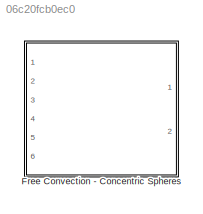
MODEL slx_06c20fcb0ec0
KIND library
CONFIG AbsTol = auto
CONFIG FixedStep = auto
CONFIG MaxStep = auto
CONFIG MinStep = auto
CONFIG RelTol = 1e-3
CONFIG SampleTimeConstraint = Unconstrained
CONFIG Solver = ode45
CONFIG SolverMode = Auto
CONFIG SolverName = ode45
CONFIG StartTime = 0.0
CONFIG StopTime = 10.0
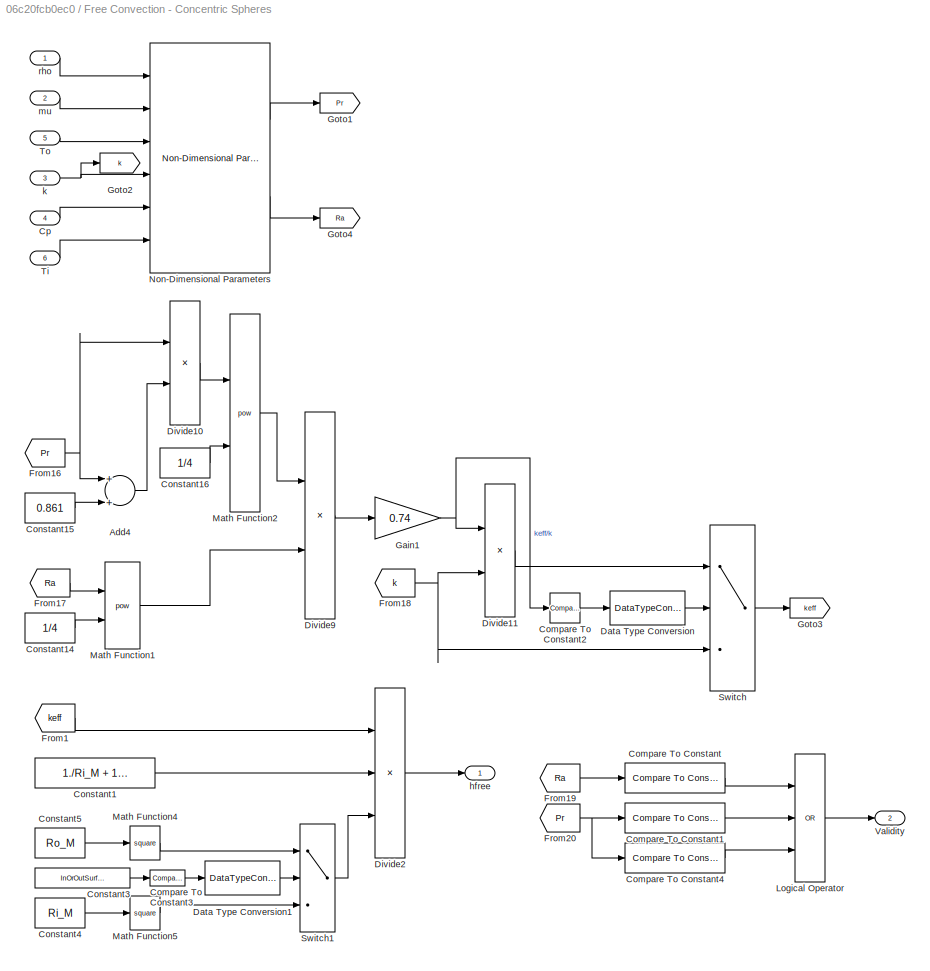
BLOCK [SubSystem] Free Convection - Concentric Spheres
  Ports = [6, 2]
  RequestExecContextInheritance = off
BLOCK [Sum] Free Convection - Concentric Spheres/Add4
  InputSameDT = off
  OutDataTypeStr = Inherit: Inherit via internal rule
  Ports = [2, 1]
  SaturateOnIntegerOverflow = off
BLOCK [Reference] Free Convection - Concentric Spheres/Compare To Constant  REF=simulink/Logic and Bit
Operations/Compare
To Constant
  OutDataTypeStr = boolean
  Ports = [1, 1]
  SourceBlock = simulink/Logic and Bit\nOperations/Compare\nTo Constant
  SourceType = Compare To Constant
  ZeroCross = on
  const = 10^4
  relop = >
BLOCK [Reference] Free Convection - Concentric Spheres/Compare To Constant1  REF=simulink/Logic and Bit
Operations/Compare
To Constant
  OutDataTypeStr = boolean
  Ports = [1, 1]
  SourceBlock = simulink/Logic and Bit\nOperations/Compare\nTo Constant
  SourceType = Compare To Constant
  ZeroCross = on
  const = 0.7
  relop = <
BLOCK [Reference] Free Convection - Concentric Spheres/Compare To Constant2  REF=simulink/Logic and Bit
Operations/Compare
To Constant
  OutDataTypeStr = boolean
  Ports = [1, 1]
  SourceBlock = simulink/Logic and Bit\nOperations/Compare\nTo Constant
  SourceType = Compare To Constant
  ZeroCross = on
  const = 1
  relop = >=
BLOCK [Reference] Free Convection - Concentric Spheres/Compare To Constant3  REF=simulink/Logic and Bit
Operations/Compare
To Constant
  OutDataTypeStr = boolean
  Ports = [1, 1]
  SourceBlock = simulink/Logic and Bit\nOperations/Compare\nTo Constant
  SourceType = Compare To Constant
  ZeroCross = on
  const = 1.5
  relop = >
BLOCK [Reference] Free Convection - Concentric Spheres/Compare To Constant4  REF=simulink/Logic and Bit
Operations/Compare
To Constant
  OutDataTypeStr = boolean
  Ports = [1, 1]
  SourceBlock = simulink/Logic and Bit\nOperations/Compare\nTo Constant
  SourceType = Compare To Constant
  ZeroCross = on
  const = 4000
  relop = >
BLOCK [Constant] Free Convection - Concentric Spheres/Constant1
  Value = 1./Ri_M + 1./Ro_M
BLOCK [Constant] Free Convection - Concentric Spheres/Constant14
  Value = 1/4
BLOCK [Constant] Free Convection - Concentric Spheres/Constant15
  Value = 0.861
BLOCK [Constant] Free Convection - Concentric Spheres/Constant16
  Value = 1/4
BLOCK [Constant] Free Convection - Concentric Spheres/Constant3
  Value = InOrOutSurf_M
BLOCK [Constant] Free Convection - Concentric Spheres/Constant4
  Value = Ri_M
BLOCK [Constant] Free Convection - Concentric Spheres/Constant5
  Value = Ro_M
BLOCK [Inport] Free Convection - Concentric Spheres/Cp
  IconDisplay = Port number
  Port = 4
BLOCK [DataTypeConversion] Free Convection - Concentric Spheres/Data Type Conversion
  OutDataTypeStr = double
  RndMeth = Floor
  SaturateOnIntegerOverflow = off
BLOCK [DataTypeConversion] Free Convection - Concentric Spheres/Data Type Conversion1
  OutDataTypeStr = double
  RndMeth = Floor
  SaturateOnIntegerOverflow = off
BLOCK [Product] Free Convection - Concentric Spheres/Divide10
  InputSameDT = off
  Inputs = */
  OutDataTypeStr = Inherit: Inherit via internal rule
  Ports = [2, 1]
  RndMeth = Floor
  SaturateOnIntegerOverflow = off
BLOCK [Product] Free Convection - Concentric Spheres/Divide11
  InputSameDT = off
  Inputs = **
  OutDataTypeStr = Inherit: Inherit via internal rule
  Ports = [2, 1]
  RndMeth = Floor
  SaturateOnIntegerOverflow = off
BLOCK [Product] Free Convection - Concentric Spheres/Divide2
  InputSameDT = off
  Inputs = *//
  OutDataTypeStr = Inherit: Inherit via internal rule
  Ports = [3, 1]
  RndMeth = Floor
  SaturateOnIntegerOverflow = off
BLOCK [Product] Free Convection - Concentric Spheres/Divide9
  InputSameDT = off
  Inputs = **
  OutDataTypeStr = Inherit: Inherit via internal rule
  Ports = [2, 1]
  RndMeth = Floor
  SaturateOnIntegerOverflow = off
BLOCK [From] Free Convection - Concentric Spheres/From1
  GotoTag = keff
BLOCK [From] Free Convection - Concentric Spheres/From16
  GotoTag = Pr
BLOCK [From] Free Convection - Concentric Spheres/From17
  GotoTag = Ra
BLOCK [From] Free Convection - Concentric Spheres/From18
  GotoTag = k
BLOCK [From] Free Convection - Concentric Spheres/From19
  GotoTag = Ra
BLOCK [From] Free Convection - Concentric Spheres/From20
  GotoTag = Pr
BLOCK [Gain] Free Convection - Concentric Spheres/Gain1
  Gain = 0.74
  OutDataTypeStr = Inherit: Inherit via internal rule
  ParamDataTypeStr = Inherit: Inherit via internal rule
  SaturateOnIntegerOverflow = off
BLOCK [Goto] Free Convection - Concentric Spheres/Goto1
  GotoTag = Pr
BLOCK [Goto] Free Convection - Concentric Spheres/Goto2
  GotoTag = k
BLOCK [Goto] Free Convection - Concentric Spheres/Goto3
  GotoTag = keff
BLOCK [Goto] Free Convection - Concentric Spheres/Goto4
  GotoTag = Ra
BLOCK [Logic] Free Convection - Concentric Spheres/Logical Operator
  AllPortsSameDT = off
  Inputs = 3
  Operator = OR
  OutDataTypeStr = boolean
  Ports = [3, 1]
BLOCK [Math] Free Convection - Concentric Spheres/Math Function1
  Operator = pow
  Ports = [2, 1]
BLOCK [Math] Free Convection - Concentric Spheres/Math Function2
  Operator = pow
  Ports = [2, 1]
BLOCK [Math] Free Convection - Concentric Spheres/Math Function4
  Operator = square
  Ports = [1, 1]
BLOCK [Math] Free Convection - Concentric Spheres/Math Function5
  Operator = square
  Ports = [1, 1]
BLOCK [Reference] Free Convection - Concentric Spheres/Non-Dimensional Parameters  REF=lib_Convection_NonDimParms/Non-Dimensional Parameters
  A_M = 1
  Bi_M = off
  Ec_M = off
  Fo_M = off
  Gr_M = off
  L_M = Lc_I
  M_M = off
  Nu_M = off
  Pe_M = off
  Ports = [6, 2]
  Pr_M = on
  R_M = R_M
  Ra_M = on
  Re_M = off
  SourceBlock = lib_Convection_NonDimParms/Non-Dimensional Parameters
  SourceType = TSAT: Non-Dimensional Parameters Block
  St_M = off
  g_M = g_M
  jH_M = off
  mdot_A_or_rhov_M = off
  perfGas_M = on
  t_M = 1
BLOCK [Switch] Free Convection - Concentric Spheres/Switch
  InputSameDT = off
  SaturateOnIntegerOverflow = off
BLOCK [Switch] Free Convection - Concentric Spheres/Switch1
  InputSameDT = off
  SaturateOnIntegerOverflow = off
BLOCK [Inport] Free Convection - Concentric Spheres/Ti
  IconDisplay = Port number
  Port = 6
BLOCK [Inport] Free Convection - Concentric Spheres/To
  IconDisplay = Port number
  Port = 5
BLOCK [Outport] Free Convection - Concentric Spheres/Validity
  IconDisplay = Port number
  Port = 2
BLOCK [Outport] Free Convection - Concentric Spheres/hfree
  IconDisplay = Port number
BLOCK [Inport] Free Convection - Concentric Spheres/k
  IconDisplay = Port number
  Port = 3
BLOCK [Inport] Free Convection - Concentric Spheres/mu
  IconDisplay = Port number
  Port = 2
BLOCK [Inport] Free Convection - Concentric Spheres/rho
  IconDisplay = Port number
LINE Free Convection - Concentric Spheres/Add4:1 -> Free Convection - Concentric Spheres/Divide10:2
LINE Free Convection - Concentric Spheres/Compare To Constant1:1 -> Free Convection - Concentric Spheres/Logical Operator:2
LINE Free Convection - Concentric Spheres/Compare To Constant2:1 -> Free Convection - Concentric Spheres/Data Type Conversion:1
LINE Free Convection - Concentric Spheres/Compare To Constant3:1 -> Free Convection - Concentric Spheres/Data Type Conversion1:1
LINE Free Convection - Concentric Spheres/Compare To Constant4:1 -> Free Convection - Concentric Spheres/Logical Operator:3
LINE Free Convection - Concentric Spheres/Compare To Constant:1 -> Free Convection - Concentric Spheres/Logical Operator:1
LINE Free Convection - Concentric Spheres/Constant14:1 -> Free Convection - Concentric Spheres/Math Function1:2
LINE Free Convection - Concentric Spheres/Constant15:1 -> Free Convection - Concentric Spheres/Add4:2
LINE Free Convection - Concentric Spheres/Constant16:1 -> Free Convection - Concentric Spheres/Math Function2:2
LINE Free Convection - Concentric Spheres/Constant1:1 -> Free Convection - Concentric Spheres/Divide2:2
LINE Free Convection - Concentric Spheres/Constant3:1 -> Free Convection - Concentric Spheres/Compare To Constant3:1
LINE Free Convection - Concentric Spheres/Constant4:1 -> Free Convection - Concentric Spheres/Math Function5:1
LINE Free Convection - Concentric Spheres/Constant5:1 -> Free Convection - Concentric Spheres/Math Function4:1
LINE Free Convection - Concentric Spheres/Cp:1 -> Free Convection - Concentric Spheres/Non-Dimensional Parameters:5
LINE Free Convection - Concentric Spheres/Data Type Conversion1:1 -> Free Convection - Concentric Spheres/Switch1:2
LINE Free Convection - Concentric Spheres/Data Type Conversion:1 -> Free Convection - Concentric Spheres/Switch:2
LINE Free Convection - Concentric Spheres/Divide10:1 -> Free Convection - Concentric Spheres/Math Function2:1
LINE Free Convection - Concentric Spheres/Divide11:1 -> Free Convection - Concentric Spheres/Switch:1
LINE Free Convection - Concentric Spheres/Divide2:1 -> Free Convection - Concentric Spheres/hfree:1
LINE Free Convection - Concentric Spheres/Divide9:1 -> Free Convection - Concentric Spheres/Gain1:1
NET Free Convection - Concentric Spheres/From16:1 -> Free Convection - Concentric Spheres/Add4:1, Free Convection - Concentric Spheres/Divide10:1
LINE Free Convection - Concentric Spheres/From17:1 -> Free Convection - Concentric Spheres/Math Function1:1
NET Free Convection - Concentric Spheres/From18:1 -> Free Convection - Concentric Spheres/Divide11:2, Free Convection - Concentric Spheres/Switch:3
LINE Free Convection - Concentric Spheres/From19:1 -> Free Convection - Concentric Spheres/Compare To Constant:1
LINE Free Convection - Concentric Spheres/From1:1 -> Free Convection - Concentric Spheres/Divide2:1
NET Free Convection - Concentric Spheres/From20:1 -> Free Convection - Concentric Spheres/Compare To Constant1:1, Free Convection - Concentric Spheres/Compare To Constant4:1
NET Free Convection - Concentric Spheres/Gain1:1 -> Free Convection - Concentric Spheres/Compare To Constant2:1, Free Convection - Concentric Spheres/Divide11:1
LINE Free Convection - Concentric Spheres/Logical Operator:1 -> Free Convection - Concentric Spheres/Validity:1
LINE Free Convection - Concentric Spheres/Math Function1:1 -> Free Convection - Concentric Spheres/Divide9:2
LINE Free Convection - Concentric Spheres/Math Function2:1 -> Free Convection - Concentric Spheres/Divide9:1
LINE Free Convection - Concentric Spheres/Math Function4:1 -> Free Convection - Concentric Spheres/Switch1:1
LINE Free Convection - Concentric Spheres/Math Function5:1 -> Free Convection - Concentric Spheres/Switch1:3
LINE Free Convection - Concentric Spheres/Non-Dimensional Parameters:1 -> Free Convection - Concentric Spheres/Goto1:1
LINE Free Convection - Concentric Spheres/Non-Dimensional Parameters:2 -> Free Convection - Concentric Spheres/Goto4:1
LINE Free Convection - Concentric Spheres/Switch1:1 -> Free Convection - Concentric Spheres/Divide2:3
LINE Free Convection - Concentric Spheres/Switch:1 -> Free Convection - Concentric Spheres/Goto3:1
LINE Free Convection - Concentric Spheres/Ti:1 -> Free Convection - Concentric Spheres/Non-Dimensional Parameters:6
LINE Free Convection - Concentric Spheres/To:1 -> Free Convection - Concentric Spheres/Non-Dimensional Parameters:3
NET Free Convection - Concentric Spheres/k:1 -> Free Convection - Concentric Spheres/Goto2:1, Free Convection - Concentric Spheres/Non-Dimensional Parameters:4
LINE Free Convection - Concentric Spheres/mu:1 -> Free Convection - Concentric Spheres/Non-Dimensional Parameters:2
LINE Free Convection - Concentric Spheres/rho:1 -> Free Convection - Concentric Spheres/Non-Dimensional Parameters:1
note: NET lines group one-source signal fan-out (src -> all destinations, sorted); 1:1 wires keep LINE
